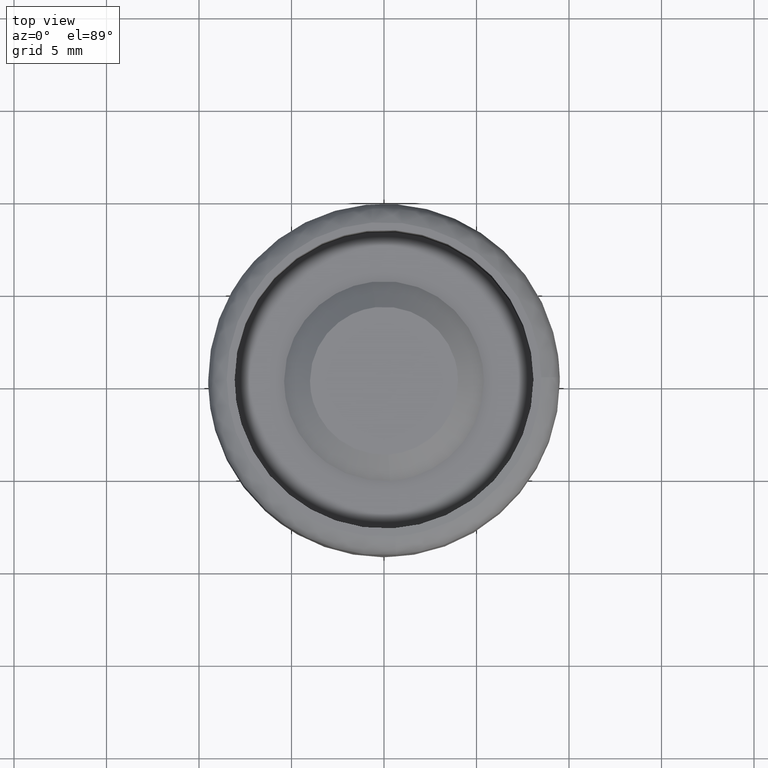
[diagram: clean part render]
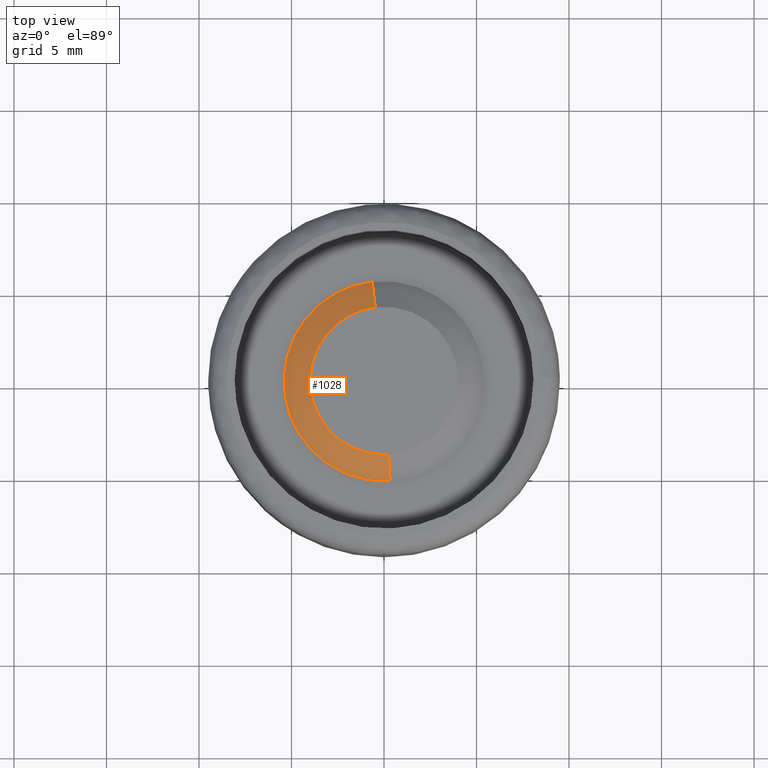
[diagram: same view with one face highlighted and labeled with its STEP entity id]
A machine part, top view. The second image highlights one B-rep face of the part: STEP entity #1028.
In plain terms, the highlighted face is a freeform B-spline surface patch.
Its self-contained STEP definition (entity closure, byte-faithful):
#865=CARTESIAN_POINT('',(-0.472136938675322,3.972038105455461,9.499999999995364));
#866=VERTEX_POINT('',#865);
#884=CARTESIAN_POINT('',(0.244194158222483,-3.992539193694182,9.499999999991591));
#885=VERTEX_POINT('',#884);
#899=CARTESIAN_POINT('',(0.329662113553684,-5.389927911483381,8.499999999993367));
#900=VERTEX_POINT('',#899);
#901=CARTESIAN_POINT('',(0.244194158222483,-3.992539193694182,9.499999999991591));
#902=CARTESIAN_POINT('',(0.329662113553684,-5.389927911483381,8.499999999993367));
#903=QUASI_UNIFORM_CURVE('',1,(#901,#902),.UNSPECIFIED.,.F.,.U.);
#904=EDGE_CURVE('',#885,#900,#903,.T.);
#921=CARTESIAN_POINT('',(-0.637384867185027,5.362251442364437,8.499999999996298));
#922=VERTEX_POINT('',#921);
#938=CARTESIAN_POINT('',(-0.472136938675322,3.972038105455461,9.499999999995364));
#939=CARTESIAN_POINT('',(-0.637384867185027,5.362251442364437,8.499999999996298));
#940=QUASI_UNIFORM_CURVE('',1,(#938,#939),.UNSPECIFIED.,.F.,.U.);
#941=EDGE_CURVE('',#866,#922,#940,.T.);
#946=CARTESIAN_POINT('',(0.242057459255708,-3.957604475742699,9.525000000000002));
#947=CARTESIAN_POINT('',(-3.715547016486990,-4.199661934998407,9.525000000000002));
#948=CARTESIAN_POINT('',(-3.957604475742699,-0.242057459255708,9.525000000000002));
#949=CARTESIAN_POINT('',(-4.186192270044470,3.495319941178618,9.525000000000002));
#950=CARTESIAN_POINT('',(-0.468005740414047,3.937282772031934,9.525000000000004));
#951=CARTESIAN_POINT('',(0.331852229844041,-5.425735997371467,8.474374999999998));
#952=CARTESIAN_POINT('',(-5.093883767527426,-5.757588227215508,8.474374999999998));
#953=CARTESIAN_POINT('',(-5.425735997371467,-0.331852229844041,8.474374999999998));
#954=CARTESIAN_POINT('',(-5.739121792163432,4.791960223267173,8.474374999999998));
#955=CARTESIAN_POINT('',(-0.641619345314807,5.397875659122097,8.474375000000000));
#963=(BOUNDED_SURFACE()B_SPLINE_SURFACE(2,1,((#946,#951),(#947,#952),(#948,#953),(#949,#954),(#950,#955)),.UNSPECIFIED.,.F.,.F.,.U.)B_SPLINE_SURFACE_WITH_KNOTS((3,2,3),(2,2),(0.0,9.006452593459393,17.652647083180408),(0.0,1.0),.UNSPECIFIED.)GEOMETRIC_REPRESENTATION_ITEM()RATIONAL_B_SPLINE_SURFACE(((1.0,1.0),(0.707106781186548,0.707106781186548),(1.0,1.0),(0.718822509939086,0.718822509939086),(0.977505800795127,0.977505800795127)))REPRESENTATION_ITEM('')SURFACE());
#964=CARTESIAN_POINT('',(-4.0,0.0,9.500000000000000));
#965=VERTEX_POINT('',#964);
#966=CARTESIAN_POINT('',(-4.0,0.0,9.500000000000000));
#967=CARTESIAN_POINT('',(-4.000000000000001,3.552698103719862,9.500000000000000));
#968=CARTESIAN_POINT('',(-0.472136938675322,3.972038105455461,9.499999999995364));
#976=(BOUNDED_CURVE()B_SPLINE_CURVE(2,(#966,#967,#968),.UNSPECIFIED.,.F.,.U.)B_SPLINE_CURVE_WITH_KNOTS((3,3),(0.0,0.229562473511600),.UNSPECIFIED.)CURVE()GEOMETRIC_REPRESENTATION_ITEM()RATIONAL_B_SPLINE_CURVE((1.0,0.731050832857638,0.956026754179959))REPRESENTATION_ITEM(''));
#977=EDGE_CURVE('',#965,#866,#976,.T.);
#978=ORIENTED_EDGE('',*,*,#977,.T.);
#979=ORIENTED_EDGE('',*,*,#941,.T.);
#980=CARTESIAN_POINT('',(-5.400000000000000,0.0,8.500000000000000));
#981=VERTEX_POINT('',#980);
#982=CARTESIAN_POINT('',(-5.400000000000000,0.0,8.500000000000000));
#983=CARTESIAN_POINT('',(-5.400000000000000,4.796142440069075,8.500000000000000));
#984=CARTESIAN_POINT('',(-0.637384867185027,5.362251442364437,8.499999999996298));
#992=(BOUNDED_CURVE()B_SPLINE_CURVE(2,(#982,#983,#984),.UNSPECIFIED.,.F.,.U.)B_SPLINE_CURVE_WITH_KNOTS((3,3),(0.0,0.229562473513254),.UNSPECIFIED.)CURVE()GEOMETRIC_REPRESENTATION_ITEM()RATIONAL_B_SPLINE_CURVE((1.0,0.731050832855700,0.956026754183201))REPRESENTATION_ITEM(''));
#993=EDGE_CURVE('',#981,#922,#992,.T.);
#994=ORIENTED_EDGE('',*,*,#993,.F.);
#995=CARTESIAN_POINT('',(0.329662113553684,-5.389927911483382,8.499999999993367));
#996=CARTESIAN_POINT('',(0.164984921877451,-5.400000000000000,8.500000000000000));
#997=CARTESIAN_POINT('',(0.0,-5.400000000000000,8.500000000000000));
#998=CARTESIAN_POINT('',(-5.400000000000000,-5.400000000000000,8.500000000000002));
#999=CARTESIAN_POINT('',(-5.400000000000000,0.0,8.500000000000000));
#1007=(BOUNDED_CURVE()B_SPLINE_CURVE(2,(#995,#996,#997,#998,#999),.UNSPECIFIED.,.F.,.U.)B_SPLINE_CURVE_WITH_KNOTS((3,2,3),(0.739332962237814,0.750000000000000,1.0),.UNSPECIFIED.)CURVE()GEOMETRIC_REPRESENTATION_ITEM()RATIONAL_B_SPLINE_CURVE((0.976072041664298,0.987502787898515,1.0,0.707106781186548,1.0))REPRESENTATION_ITEM(''));
#1008=EDGE_CURVE('',#900,#981,#1007,.T.);
#1009=ORIENTED_EDGE('',*,*,#1008,.F.);
#1010=ORIENTED_EDGE('',*,*,#904,.F.);
#1011=CARTESIAN_POINT('',(0.244194158222483,-3.992539193694182,9.499999999991591));
#1012=CARTESIAN_POINT('',(0.122211053276923,-4.000000000000000,9.500000000000000));
#1013=CARTESIAN_POINT('',(0.0,-4.0,9.500000000000000));
#1014=CARTESIAN_POINT('',(-4.000000000000000,-4.000000000000000,9.500000000000000));
#1015=CARTESIAN_POINT('',(-4.0,0.0,9.500000000000000));
#1023=(BOUNDED_CURVE()B_SPLINE_CURVE(2,(#1011,#1012,#1013,#1014,#1015),.UNSPECIFIED.,.F.,.U.)B_SPLINE_CURVE_WITH_KNOTS((3,2,3),(0.739332962234852,0.750000000000000,1.0),.UNSPECIFIED.)CURVE()GEOMETRIC_REPRESENTATION_ITEM()RATIONAL_B_SPLINE_CURVE((0.976072041657949,0.987502787895044,1.0,0.707106781186548,1.0))REPRESENTATION_ITEM(''));
#1024=EDGE_CURVE('',#885,#965,#1023,.T.);
#1025=ORIENTED_EDGE('',*,*,#1024,.T.);
#1026=EDGE_LOOP('',(#978,#979,#994,#1009,#1010,#1025));
#1027=FACE_OUTER_BOUND('',#1026,.T.);
#1028=ADVANCED_FACE('',(#1027),#963,.T.);